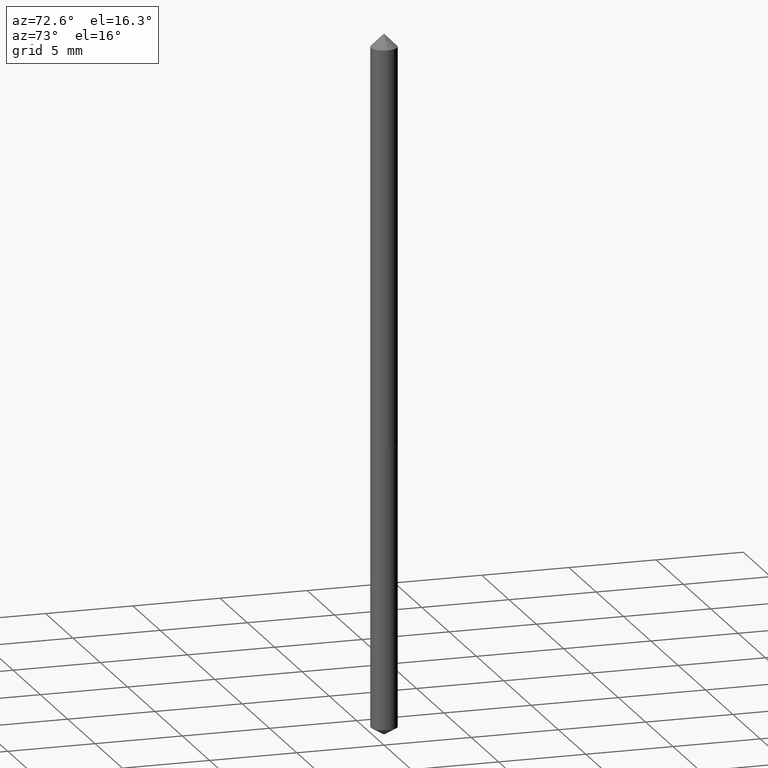
[diagram: clean part render]
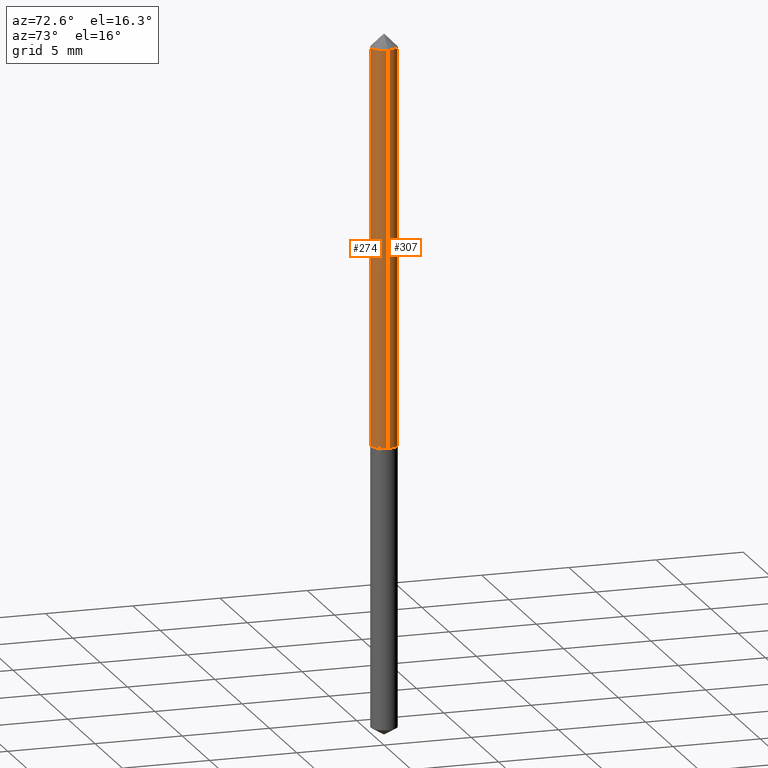
[diagram: same view with one multi-face feature highlighted, each face labeled with its STEP entity id]
A machine part, auxiliary view. The highlighted faces form ONE feature: a constant-radius fillet chain: 2 tangent blend faces with common blend radius 0.7506 mm. The faces share edges in the B-rep.
Their STEP definitions:
[1] entity #307 (Cylinder):
#5 = EDGE_CURVE ( 'NONE', #144, #193, #79, .T. ) ;
#14 = EDGE_CURVE ( 'NONE', #193, #279, #265, .T. ) ;
#15 = DIRECTION ( 'NONE',  ( -2.445468806185136597E-29, 3.491481338843145583E-15, 1.000000000000000000 ) ) ;
#16 = CARTESIAN_POINT ( 'NONE',  ( 2.261325005079396176E-29, -3.228572794028256890E-15, -0.9247000000000000774 ) ) ;
#21 = AXIS2_PLACEMENT_3D ( 'NONE', #154, #148, #126 ) ;
#27 = EDGE_CURVE ( 'NONE', #82, #279, #29, .T. ) ;
#29 = CIRCLE ( 'NONE', #21, 0.02955000000000000335 ) ;
#40 = ORIENTED_EDGE ( 'NONE', *, *, #14, .T. ) ;
#48 = DIRECTION ( 'NONE',  ( 1.000000000000000000, -6.982962677686266711E-15, 4.876176775795935793E-29 ) ) ;
#54 = CYLINDRICAL_SURFACE ( 'NONE', #306, 0.02955000000000005886 ) ;
#78 = FACE_OUTER_BOUND ( 'NONE', #238, .T. ) ;
#79 = CIRCLE ( 'NONE', #165, 0.02955000000000011437 ) ;
#82 = VERTEX_POINT ( 'NONE', #235 ) ;
#87 = LINE ( 'NONE', #195, #226 ) ;
#88 = ORIENTED_EDGE ( 'NONE', *, *, #357, .F. ) ;
#103 = CARTESIAN_POINT ( 'NONE',  ( -0.02955000000000000335, -1.458875414516441863E-15, -0.03125000000000020817 ) ) ;
#124 = ORIENTED_EDGE ( 'NONE', *, *, #27, .F. ) ;
#126 = DIRECTION ( 'NONE',  ( 1.000000000000000000, -6.982962677686268288E-15, 0.000000000000000000 ) ) ;
#144 = VERTEX_POINT ( 'NONE', #184 ) ;
#148 = DIRECTION ( 'NONE',  ( -2.445468806185136597E-29, 3.491481338843145583E-15, 1.000000000000000000 ) ) ;
#154 = CARTESIAN_POINT ( 'NONE',  ( 7.642090019328602662E-31, -1.091087918388490267E-16, -0.03125000000000020817 ) ) ;
#159 = CARTESIAN_POINT ( 'NONE',  ( -0.02955000000000011437, -3.018607415611146744E-15, -0.9247000000000000774 ) ) ;
#165 = AXIS2_PLACEMENT_3D ( 'NONE', #16, #15, #295 ) ;
#173 = CARTESIAN_POINT ( 'NONE',  ( -0.02955000000000005886, 2.099653784171100231E-16, -1.453545319170327703E-30 ) ) ;
#179 = DIRECTION ( 'NONE',  ( -2.445468806185136877E-29, 3.491481338843145188E-15, 1.000000000000000000 ) ) ;
#184 = CARTESIAN_POINT ( 'NONE',  ( 0.02955000000000011437, -3.434919341153886895E-15, -0.9247000000000000774 ) ) ;
#193 = VERTEX_POINT ( 'NONE', #159 ) ;
#195 = CARTESIAN_POINT ( 'NONE',  ( 0.02955000000000005886, -2.063465471256295858E-16, 1.440910237247701873E-30 ) ) ;
#214 = CARTESIAN_POINT ( 'NONE',  ( 0.000000000000000000, 0.000000000000000000, 0.000000000000000000 ) ) ;
#226 = VECTOR ( 'NONE', #286, 39.37007874015748143 ) ;
#235 = CARTESIAN_POINT ( 'NONE',  ( 0.02955000000000000335, -3.154553389644782180E-16, -0.03125000000000020817 ) ) ;
#238 = EDGE_LOOP ( 'NONE', ( #303, #40, #124, #88 ) ) ;
#265 = LINE ( 'NONE', #173, #284 ) ;
#279 = VERTEX_POINT ( 'NONE', #103 ) ;
#284 = VECTOR ( 'NONE', #179, 39.37007874015748143 ) ;
#286 = DIRECTION ( 'NONE',  ( -2.445468806185136877E-29, 3.491481338843145188E-15, 1.000000000000000000 ) ) ;
#295 = DIRECTION ( 'NONE',  ( 1.000000000000000000, -6.982962677686268288E-15, 0.000000000000000000 ) ) ;
#301 = DIRECTION ( 'NONE',  ( -2.445468806185136597E-29, 3.491481338843145583E-15, 1.000000000000000000 ) ) ;
#303 = ORIENTED_EDGE ( 'NONE', *, *, #5, .T. ) ;
#306 = AXIS2_PLACEMENT_3D ( 'NONE', #214, #301, #48 ) ;
#307 = ADVANCED_FACE ( 'NONE', ( #78 ), #54, .T. ) ;
#357 = EDGE_CURVE ( 'NONE', #144, #82, #87, .T. ) ;
[2] entity #274 (Cylinder):
#8 = ORIENTED_EDGE ( 'NONE', *, *, #213, .T. ) ;
#14 = EDGE_CURVE ( 'NONE', #193, #279, #265, .T. ) ;
#38 = AXIS2_PLACEMENT_3D ( 'NONE', #156, #158, #49 ) ;
#49 = DIRECTION ( 'NONE',  ( 1.000000000000000000, -6.982962677686266711E-15, 4.876176775795935793E-29 ) ) ;
#60 = DIRECTION ( 'NONE',  ( -2.445468806185136597E-29, 3.491481338843145583E-15, 1.000000000000000000 ) ) ;
#66 = ORIENTED_EDGE ( 'NONE', *, *, #339, .F. ) ;
#81 = DIRECTION ( 'NONE',  ( 1.000000000000000000, -6.982962677686268288E-15, 0.000000000000000000 ) ) ;
#82 = VERTEX_POINT ( 'NONE', #235 ) ;
#83 = AXIS2_PLACEMENT_3D ( 'NONE', #84, #60, #168 ) ;
#84 = CARTESIAN_POINT ( 'NONE',  ( 7.642090019328602662E-31, -1.091087918388490267E-16, -0.03125000000000020817 ) ) ;
#87 = LINE ( 'NONE', #195, #226 ) ;
#90 = CIRCLE ( 'NONE', #335, 0.02955000000000011437 ) ;
#103 = CARTESIAN_POINT ( 'NONE',  ( -0.02955000000000000335, -1.458875414516441863E-15, -0.03125000000000020817 ) ) ;
#105 = CYLINDRICAL_SURFACE ( 'NONE', #38, 0.02955000000000005886 ) ;
#129 = FACE_OUTER_BOUND ( 'NONE', #243, .T. ) ;
#134 = DIRECTION ( 'NONE',  ( -2.445468806185136597E-29, 3.491481338843145583E-15, 1.000000000000000000 ) ) ;
#144 = VERTEX_POINT ( 'NONE', #184 ) ;
#156 = CARTESIAN_POINT ( 'NONE',  ( 0.000000000000000000, 0.000000000000000000, 0.000000000000000000 ) ) ;
#158 = DIRECTION ( 'NONE',  ( -2.445468806185136597E-29, 3.491481338843145583E-15, 1.000000000000000000 ) ) ;
#159 = CARTESIAN_POINT ( 'NONE',  ( -0.02955000000000011437, -3.018607415611146744E-15, -0.9247000000000000774 ) ) ;
#168 = DIRECTION ( 'NONE',  ( 1.000000000000000000, -6.982962677686268288E-15, 0.000000000000000000 ) ) ;
#173 = CARTESIAN_POINT ( 'NONE',  ( -0.02955000000000005886, 2.099653784171100231E-16, -1.453545319170327703E-30 ) ) ;
#179 = DIRECTION ( 'NONE',  ( -2.445468806185136877E-29, 3.491481338843145188E-15, 1.000000000000000000 ) ) ;
#184 = CARTESIAN_POINT ( 'NONE',  ( 0.02955000000000011437, -3.434919341153886895E-15, -0.9247000000000000774 ) ) ;
#187 = ORIENTED_EDGE ( 'NONE', *, *, #357, .T. ) ;
#193 = VERTEX_POINT ( 'NONE', #159 ) ;
#195 = CARTESIAN_POINT ( 'NONE',  ( 0.02955000000000005886, -2.063465471256295858E-16, 1.440910237247701873E-30 ) ) ;
#213 = EDGE_CURVE ( 'NONE', #193, #144, #90, .T. ) ;
#218 = CIRCLE ( 'NONE', #83, 0.02955000000000000335 ) ;
#226 = VECTOR ( 'NONE', #286, 39.37007874015748143 ) ;
#233 = ORIENTED_EDGE ( 'NONE', *, *, #14, .F. ) ;
#235 = CARTESIAN_POINT ( 'NONE',  ( 0.02955000000000000335, -3.154553389644782180E-16, -0.03125000000000020817 ) ) ;
#243 = EDGE_LOOP ( 'NONE', ( #233, #8, #187, #66 ) ) ;
#248 = CARTESIAN_POINT ( 'NONE',  ( 2.261325005079396176E-29, -3.228572794028256890E-15, -0.9247000000000000774 ) ) ;
#265 = LINE ( 'NONE', #173, #284 ) ;
#274 = ADVANCED_FACE ( 'NONE', ( #129 ), #105, .T. ) ;
#279 = VERTEX_POINT ( 'NONE', #103 ) ;
#284 = VECTOR ( 'NONE', #179, 39.37007874015748143 ) ;
#286 = DIRECTION ( 'NONE',  ( -2.445468806185136877E-29, 3.491481338843145188E-15, 1.000000000000000000 ) ) ;
#335 = AXIS2_PLACEMENT_3D ( 'NONE', #248, #134, #81 ) ;
#339 = EDGE_CURVE ( 'NONE', #279, #82, #218, .T. ) ;
#357 = EDGE_CURVE ( 'NONE', #144, #82, #87, .T. ) ;